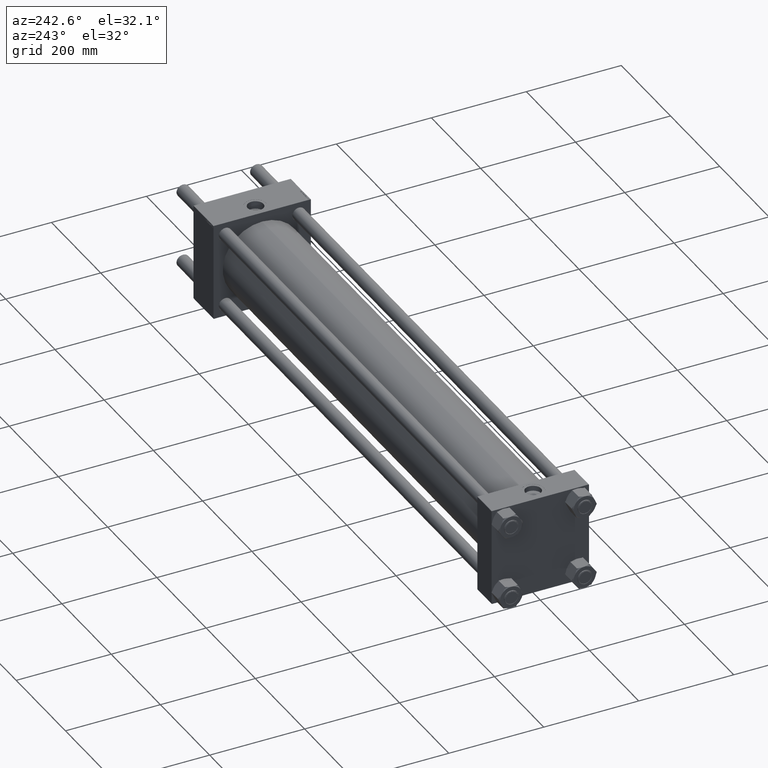
[diagram: clean part render]
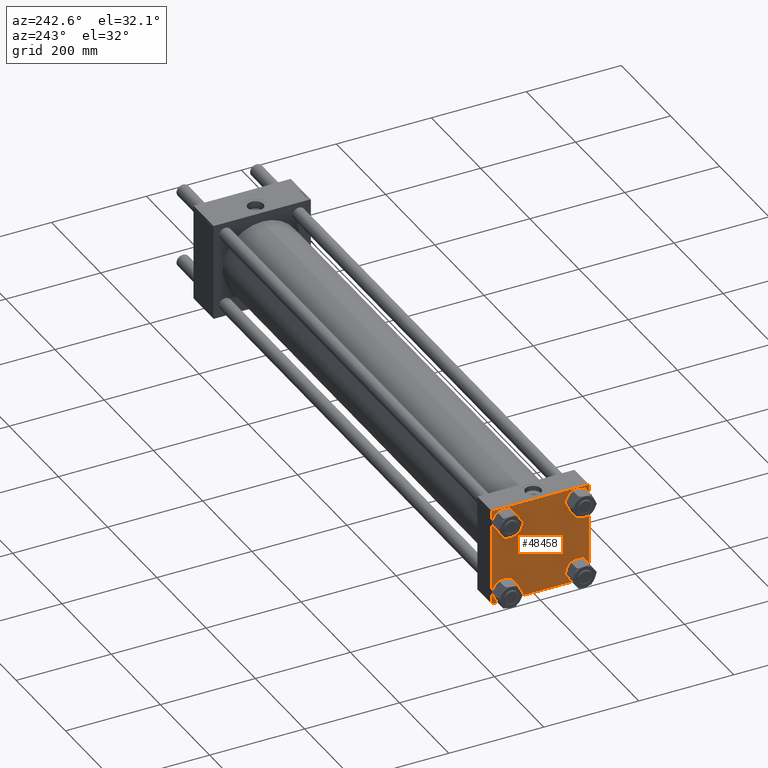
[diagram: same view with one face highlighted and labeled with its STEP entity id]
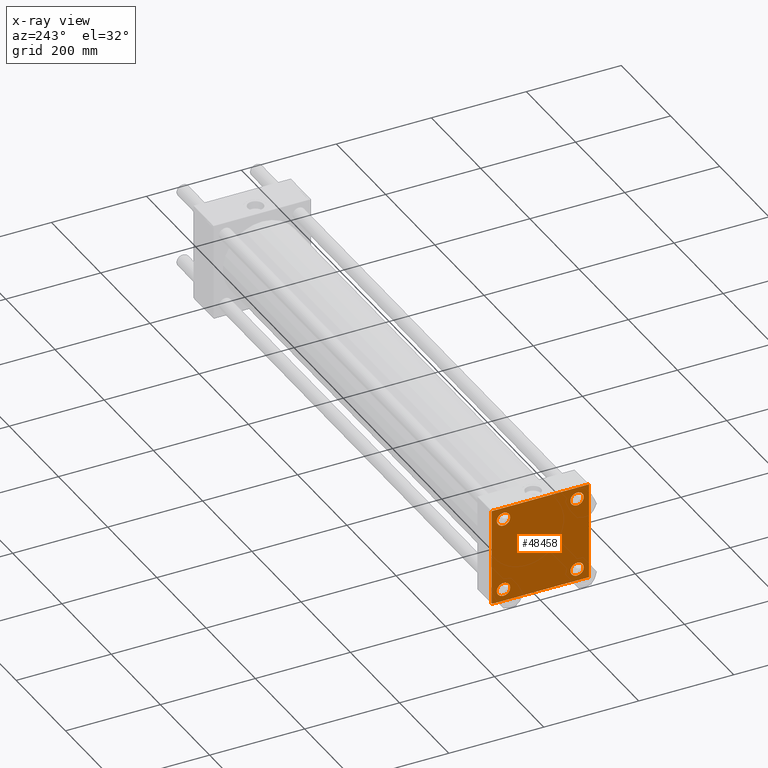
[diagram: x-ray of the same camera — body ghosted, the highlighted face saturated]
A machine part, auxiliary view. The second image highlights one B-rep face of the part: STEP entity #48458.
The next image is the same camera in x-ray: the body ghosted, the highlighted face saturated — about 0% of this face is hidden behind the body in this view.
In plain terms, the highlighted planar face has unit normal (-1, 0, 0).
Its self-contained STEP definition (entity closure, byte-faithful):
#483 = EDGE_CURVE ( 'NONE', #40825, #2707, #7040, .T. ) ;
#669 = ORIENTED_EDGE ( 'NONE', *, *, #45126, .T. ) ;
#752 = CARTESIAN_POINT ( 'NONE',  ( 0.000000000000000000, -77.44999999999996021, -91.45000000000015916 ) ) ;
#1538 = DIRECTION ( 'NONE',  ( 0.000000000000000000, 0.000000000000000000, 1.000000000000000000 ) ) ;
#1646 = VERTEX_POINT ( 'NONE', #54837 ) ;
#2448 = DIRECTION ( 'NONE',  ( 0.000000000000000000, 0.000000000000000000, 1.000000000000000000 ) ) ;
#2707 = VERTEX_POINT ( 'NONE', #32163 ) ;
#3028 = CARTESIAN_POINT ( 'NONE',  ( 0.000000000000000000, -77.44999999999996021, -77.45000000000003126 ) ) ;
#3051 = CARTESIAN_POINT ( 'NONE',  ( 0.000000000000000000, 102.0000000000000142, -102.4999999999999716 ) ) ;
#3115 = VECTOR ( 'NONE', #55383, 1000.000000000000000 ) ;
#3248 = DIRECTION ( 'NONE',  ( -0.000000000000000000, 0.7071067811865474617, 0.7071067811865474617 ) ) ;
#3605 = DIRECTION ( 'NONE',  ( 1.000000000000000000, -0.000000000000000000, -0.000000000000000000 ) ) ;
#3668 = DIRECTION ( 'NONE',  ( -1.000000000000000000, 0.000000000000000000, 0.000000000000000000 ) ) ;
#4489 = AXIS2_PLACEMENT_3D ( 'NONE', #42734, #3668, #11492 ) ;
#4661 = CARTESIAN_POINT ( 'NONE',  ( 0.000000000000000000, 102.2500000000000000, -102.2500000000000000 ) ) ;
#6470 = DIRECTION ( 'NONE',  ( 1.000000000000000000, -0.000000000000000000, -0.000000000000000000 ) ) ;
#6564 = CARTESIAN_POINT ( 'NONE',  ( 0.000000000000000000, -77.44999999999996021, 63.44999999999991047 ) ) ;
#7040 = LINE ( 'NONE', #16286, #3115 ) ;
#7323 = VERTEX_POINT ( 'NONE', #37844 ) ;
#7324 = VERTEX_POINT ( 'NONE', #14986 ) ;
#7562 = CARTESIAN_POINT ( 'NONE',  ( 0.000000000000000000, -77.44999999999996021, 77.45000000000003126 ) ) ;
#7685 = LINE ( 'NONE', #41559, #47481 ) ;
#8226 = CIRCLE ( 'NONE', #14688, 14.00000000000012434 ) ;
#8917 = LINE ( 'NONE', #21377, #31143 ) ;
#11037 = CARTESIAN_POINT ( 'NONE',  ( 0.000000000000000000, 102.5000000000000284, 102.0000000000000142 ) ) ;
#11316 = LINE ( 'NONE', #13301, #25786 ) ;
#11492 = DIRECTION ( 'NONE',  ( 0.000000000000000000, 0.000000000000000000, 1.000000000000000000 ) ) ;
#11757 = EDGE_CURVE ( 'NONE', #45597, #18986, #18466, .T. ) ;
#11859 = VERTEX_POINT ( 'NONE', #43321 ) ;
#12285 = EDGE_LOOP ( 'NONE', ( #29501, #35389, #32361, #23608, #56707, #50873, #21055, #14060 ) ) ;
#12294 = ORIENTED_EDGE ( 'NONE', *, *, #40774, .T. ) ;
#13027 = DIRECTION ( 'NONE',  ( 0.000000000000000000, -0.7071067811865474617, 0.7071067811865474617 ) ) ;
#13301 = CARTESIAN_POINT ( 'NONE',  ( 0.000000000000000000, -102.2499999999999716, -102.2499999999999716 ) ) ;
#14060 = ORIENTED_EDGE ( 'NONE', *, *, #26504, .T. ) ;
#14107 = DIRECTION ( 'NONE',  ( 0.000000000000000000, -1.000000000000000000, -1.353930517835556727E-16 ) ) ;
#14466 = DIRECTION ( 'NONE',  ( 0.000000000000000000, 0.7071067811865474617, -0.7071067811865474617 ) ) ;
#14688 = AXIS2_PLACEMENT_3D ( 'NONE', #7562, #50400, #50977 ) ;
#14766 = LINE ( 'NONE', #50658, #19660 ) ;
#14850 = VERTEX_POINT ( 'NONE', #6564 ) ;
#14986 = CARTESIAN_POINT ( 'NONE',  ( 0.000000000000000000, 77.44999999999998863, 91.45000000000014495 ) ) ;
#15488 = ORIENTED_EDGE ( 'NONE', *, *, #43817, .T. ) ;
#15817 = FACE_BOUND ( 'NONE', #39738, .T. ) ;
#16196 = EDGE_CURVE ( 'NONE', #11859, #7323, #8917, .T. ) ;
#16286 = CARTESIAN_POINT ( 'NONE',  ( 0.000000000000000000, -102.4999999999999716, 102.5000000000000000 ) ) ;
#16811 = CARTESIAN_POINT ( 'NONE',  ( 0.000000000000000000, -77.44999999999996021, 91.45000000000015916 ) ) ;
#17051 = ORIENTED_EDGE ( 'NONE', *, *, #53411, .T. ) ;
#17163 = EDGE_LOOP ( 'NONE', ( #40792, #56560 ) ) ;
#17624 = VERTEX_POINT ( 'NONE', #47952 ) ;
#18249 = LINE ( 'NONE', #4661, #18751 ) ;
#18372 = AXIS2_PLACEMENT_3D ( 'NONE', #37740, #20095, #2448 ) ;
#18466 = LINE ( 'NONE', #36975, #32075 ) ;
#18725 = CARTESIAN_POINT ( 'NONE',  ( 0.000000000000000000, 102.5000000000000284, -101.9999999999999147 ) ) ;
#18751 = VECTOR ( 'NONE', #22881, 1000.000000000000114 ) ;
#18986 = VERTEX_POINT ( 'NONE', #39126 ) ;
#19660 = VECTOR ( 'NONE', #14466, 1000.000000000000114 ) ;
#19913 = CIRCLE ( 'NONE', #20817, 14.00000000000012434 ) ;
#19986 = CIRCLE ( 'NONE', #21835, 14.00000000000012434 ) ;
#20095 = DIRECTION ( 'NONE',  ( 1.000000000000000000, -0.000000000000000000, -0.000000000000000000 ) ) ;
#20817 = AXIS2_PLACEMENT_3D ( 'NONE', #27218, #36752, #32712 ) ;
#21055 = ORIENTED_EDGE ( 'NONE', *, *, #16196, .F. ) ;
#21377 = CARTESIAN_POINT ( 'NONE',  ( 0.000000000000000000, 102.5000000000000284, 102.5000000000000284 ) ) ;
#21835 = AXIS2_PLACEMENT_3D ( 'NONE', #29978, #25356, #43841 ) ;
#22053 = EDGE_CURVE ( 'NONE', #56592, #17624, #24877, .T. ) ;
#22380 = EDGE_LOOP ( 'NONE', ( #15488, #52741 ) ) ;
#22866 = VERTEX_POINT ( 'NONE', #51321 ) ;
#22874 = CIRCLE ( 'NONE', #27506, 14.00000000000012434 ) ;
#22881 = DIRECTION ( 'NONE',  ( -0.000000000000000000, -0.7071067811865474617, -0.7071067811865474617 ) ) ;
#23608 = ORIENTED_EDGE ( 'NONE', *, *, #53833, .T. ) ;
#24294 = AXIS2_PLACEMENT_3D ( 'NONE', #3028, #3605, #55708 ) ;
#24810 = FACE_BOUND ( 'NONE', #55144, .T. ) ;
#24877 = CIRCLE ( 'NONE', #18372, 14.00000000000012434 ) ;
#25356 = DIRECTION ( 'NONE',  ( 1.000000000000000000, -0.000000000000000000, -0.000000000000000000 ) ) ;
#25786 = VECTOR ( 'NONE', #13027, 1000.000000000000114 ) ;
#25897 = EDGE_CURVE ( 'NONE', #27944, #22866, #29849, .T. ) ;
#25950 = FACE_OUTER_BOUND ( 'NONE', #12285, .T. ) ;
#26030 = DIRECTION ( 'NONE',  ( 1.000000000000000000, -0.000000000000000000, -0.000000000000000000 ) ) ;
#26380 = EDGE_CURVE ( 'NONE', #36239, #45597, #18249, .T. ) ;
#26504 = EDGE_CURVE ( 'NONE', #11859, #34558, #14766, .T. ) ;
#27218 = CARTESIAN_POINT ( 'NONE',  ( 0.000000000000000000, 77.44999999999998863, -77.45000000000001705 ) ) ;
#27506 = AXIS2_PLACEMENT_3D ( 'NONE', #50448, #6470, #1538 ) ;
#27624 = CARTESIAN_POINT ( 'NONE',  ( 0.000000000000000000, -102.4999999999999716, 102.0000000000000000 ) ) ;
#27944 = VERTEX_POINT ( 'NONE', #752 ) ;
#29501 = ORIENTED_EDGE ( 'NONE', *, *, #33186, .T. ) ;
#29849 = CIRCLE ( 'NONE', #24294, 14.00000000000012434 ) ;
#29978 = CARTESIAN_POINT ( 'NONE',  ( 0.000000000000000000, 77.44999999999998863, 77.45000000000001705 ) ) ;
#30854 = DIRECTION ( 'NONE',  ( 1.000000000000000000, -0.000000000000000000, -0.000000000000000000 ) ) ;
#31143 = VECTOR ( 'NONE', #35518, 1000.000000000000000 ) ;
#31711 = CARTESIAN_POINT ( 'NONE',  ( 0.000000000000000000, -77.44999999999996021, -77.45000000000003126 ) ) ;
#32075 = VECTOR ( 'NONE', #14107, 1000.000000000000000 ) ;
#32163 = CARTESIAN_POINT ( 'NONE',  ( 0.000000000000000000, -102.5000000000000000, -101.9999999999998863 ) ) ;
#32361 = ORIENTED_EDGE ( 'NONE', *, *, #11757, .T. ) ;
#32712 = DIRECTION ( 'NONE',  ( 0.000000000000000000, 0.000000000000000000, 1.000000000000000000 ) ) ;
#33186 = EDGE_CURVE ( 'NONE', #34558, #36239, #7685, .T. ) ;
#33348 = LINE ( 'NONE', #46949, #43345 ) ;
#34558 = VERTEX_POINT ( 'NONE', #11037 ) ;
#34982 = DIRECTION ( 'NONE',  ( 0.000000000000000000, 0.000000000000000000, 1.000000000000000000 ) ) ;
#35389 = ORIENTED_EDGE ( 'NONE', *, *, #26380, .T. ) ;
#35518 = DIRECTION ( 'NONE',  ( 0.000000000000000000, -1.000000000000000000, -1.353930517835556973E-16 ) ) ;
#35801 = VERTEX_POINT ( 'NONE', #16811 ) ;
#36239 = VERTEX_POINT ( 'NONE', #18725 ) ;
#36752 = DIRECTION ( 'NONE',  ( 1.000000000000000000, -0.000000000000000000, -0.000000000000000000 ) ) ;
#36975 = CARTESIAN_POINT ( 'NONE',  ( 0.000000000000000000, 102.5000000000000284, -102.4999999999999716 ) ) ;
#37740 = CARTESIAN_POINT ( 'NONE',  ( 0.000000000000000000, 77.44999999999998863, -77.45000000000001705 ) ) ;
#37743 = EDGE_CURVE ( 'NONE', #17624, #56592, #19913, .T. ) ;
#37818 = PLANE ( 'NONE',  #4489 ) ;
#37844 = CARTESIAN_POINT ( 'NONE',  ( 0.000000000000000000, -101.9999999999999147, 102.5000000000000000 ) ) ;
#38100 = FACE_BOUND ( 'NONE', #17163, .T. ) ;
#39126 = CARTESIAN_POINT ( 'NONE',  ( 0.000000000000000000, -101.9999999999999432, -102.5000000000000000 ) ) ;
#39475 = AXIS2_PLACEMENT_3D ( 'NONE', #31711, #30854, #53706 ) ;
#39738 = EDGE_LOOP ( 'NONE', ( #40386, #17051 ) ) ;
#40386 = ORIENTED_EDGE ( 'NONE', *, *, #47802, .T. ) ;
#40774 = EDGE_CURVE ( 'NONE', #1646, #7324, #19986, .T. ) ;
#40792 = ORIENTED_EDGE ( 'NONE', *, *, #22053, .T. ) ;
#40825 = VERTEX_POINT ( 'NONE', #27624 ) ;
#41559 = CARTESIAN_POINT ( 'NONE',  ( 0.000000000000000000, 102.5000000000000284, 102.5000000000000284 ) ) ;
#42734 = CARTESIAN_POINT ( 'NONE',  ( 0.000000000000000000, 0.000000000000000000, 0.000000000000000000 ) ) ;
#43321 = CARTESIAN_POINT ( 'NONE',  ( 0.000000000000000000, 102.0000000000000142, 102.5000000000000284 ) ) ;
#43345 = VECTOR ( 'NONE', #3248, 1000.000000000000114 ) ;
#43817 = EDGE_CURVE ( 'NONE', #22866, #27944, #49651, .T. ) ;
#43841 = DIRECTION ( 'NONE',  ( 0.000000000000000000, 0.000000000000000000, 1.000000000000000000 ) ) ;
#45126 = EDGE_CURVE ( 'NONE', #7324, #1646, #22874, .T. ) ;
#45597 = VERTEX_POINT ( 'NONE', #3051 ) ;
#46949 = CARTESIAN_POINT ( 'NONE',  ( 0.000000000000000000, -102.2499999999999716, 102.2499999999999716 ) ) ;
#46973 = AXIS2_PLACEMENT_3D ( 'NONE', #47169, #26030, #34982 ) ;
#47169 = CARTESIAN_POINT ( 'NONE',  ( 0.000000000000000000, -77.44999999999996021, 77.45000000000003126 ) ) ;
#47481 = VECTOR ( 'NONE', #55151, 1000.000000000000000 ) ;
#47802 = EDGE_CURVE ( 'NONE', #35801, #14850, #57133, .T. ) ;
#47952 = CARTESIAN_POINT ( 'NONE',  ( 0.000000000000000000, 77.44999999999998863, -91.45000000000014495 ) ) ;
#48458 = ADVANCED_FACE ( 'NONE', ( #15817, #51437, #38100, #24810, #25950 ), #37818, .T. ) ;
#48906 = EDGE_CURVE ( 'NONE', #40825, #7323, #33348, .T. ) ;
#49651 = CIRCLE ( 'NONE', #39475, 14.00000000000012434 ) ;
#49777 = CARTESIAN_POINT ( 'NONE',  ( 0.000000000000000000, 77.44999999999998863, -63.44999999999989626 ) ) ;
#50400 = DIRECTION ( 'NONE',  ( 1.000000000000000000, -0.000000000000000000, -0.000000000000000000 ) ) ;
#50448 = CARTESIAN_POINT ( 'NONE',  ( 0.000000000000000000, 77.44999999999998863, 77.45000000000001705 ) ) ;
#50658 = CARTESIAN_POINT ( 'NONE',  ( 0.000000000000000000, 102.2500000000000142, 102.2500000000000142 ) ) ;
#50873 = ORIENTED_EDGE ( 'NONE', *, *, #48906, .T. ) ;
#50977 = DIRECTION ( 'NONE',  ( 0.000000000000000000, 0.000000000000000000, 1.000000000000000000 ) ) ;
#51321 = CARTESIAN_POINT ( 'NONE',  ( 0.000000000000000000, -77.44999999999996021, -63.44999999999991047 ) ) ;
#51437 = FACE_BOUND ( 'NONE', #22380, .T. ) ;
#52741 = ORIENTED_EDGE ( 'NONE', *, *, #25897, .T. ) ;
#53411 = EDGE_CURVE ( 'NONE', #14850, #35801, #8226, .T. ) ;
#53706 = DIRECTION ( 'NONE',  ( 0.000000000000000000, 0.000000000000000000, 1.000000000000000000 ) ) ;
#53833 = EDGE_CURVE ( 'NONE', #18986, #2707, #11316, .T. ) ;
#54837 = CARTESIAN_POINT ( 'NONE',  ( 0.000000000000000000, 77.44999999999998863, 63.44999999999989626 ) ) ;
#55144 = EDGE_LOOP ( 'NONE', ( #669, #12294 ) ) ;
#55151 = DIRECTION ( 'NONE',  ( 0.000000000000000000, 0.000000000000000000, -1.000000000000000000 ) ) ;
#55383 = DIRECTION ( 'NONE',  ( 0.000000000000000000, -1.353930517835556973E-16, -1.000000000000000000 ) ) ;
#55708 = DIRECTION ( 'NONE',  ( 0.000000000000000000, 0.000000000000000000, 1.000000000000000000 ) ) ;
#56560 = ORIENTED_EDGE ( 'NONE', *, *, #37743, .T. ) ;
#56592 = VERTEX_POINT ( 'NONE', #49777 ) ;
#56707 = ORIENTED_EDGE ( 'NONE', *, *, #483, .F. ) ;
#57133 = CIRCLE ( 'NONE', #46973, 14.00000000000012434 ) ;